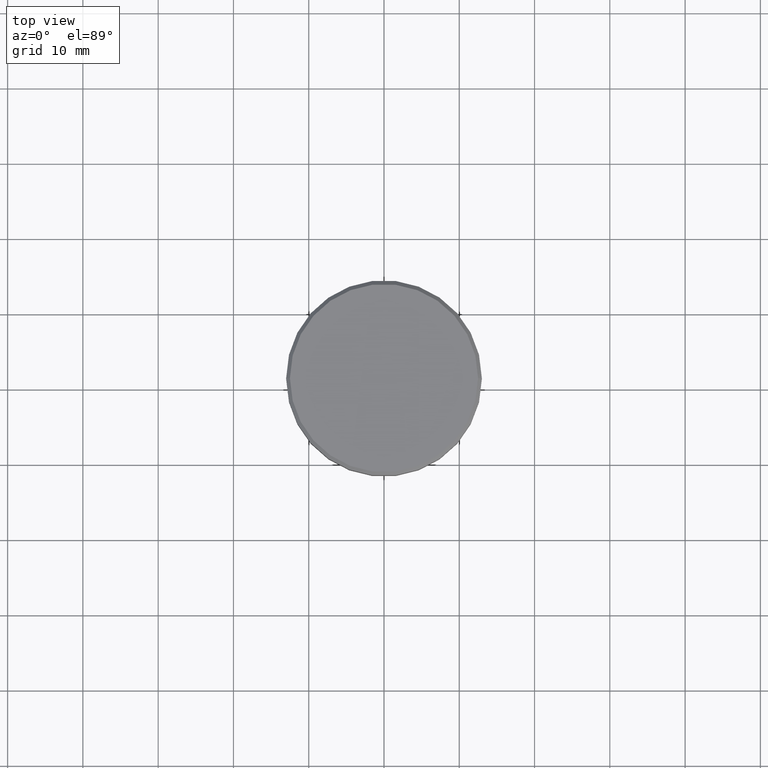
[diagram: clean part render]
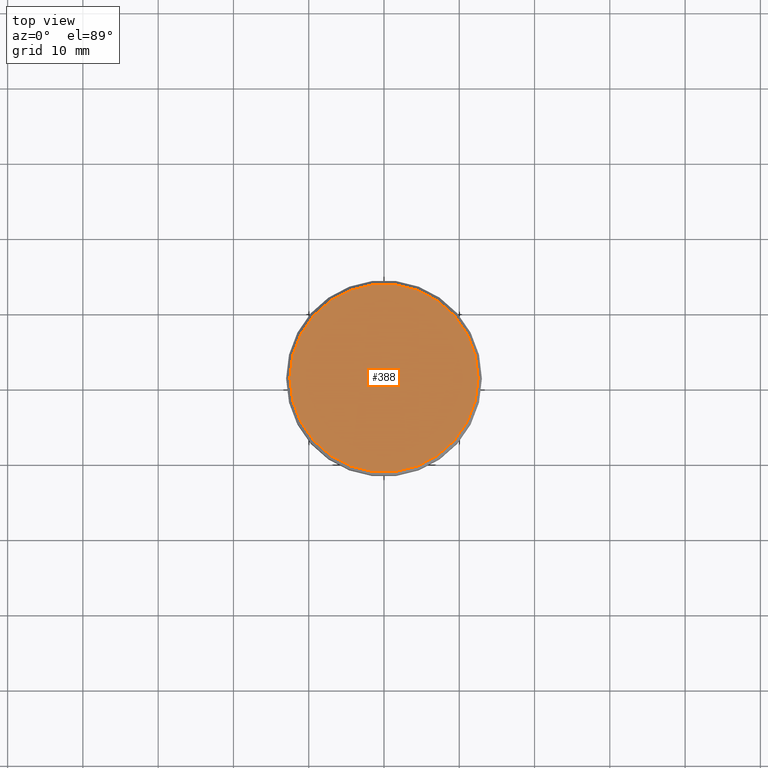
[diagram: same view with one face highlighted and labeled with its STEP entity id]
A machine part, top view. The second image highlights one B-rep face of the part: STEP entity #388.
In plain terms, the highlighted planar face has unit normal (0, -0, 1).
Its self-contained STEP definition (entity closure, byte-faithful):
#205 = AXIS2_PLACEMENT_3D ( 'NONE', #996, #957, #285 ) ;
#266 = ORIENTED_EDGE ( 'NONE', *, *, #365, .T. ) ;
#272 = PLANE ( 'NONE',  #382 ) ;
#285 = DIRECTION ( 'NONE',  ( 1.000000000000000000, 0.000000000000000000, 0.000000000000000000 ) ) ;
#315 = CIRCLE ( 'NONE', #205, 12.49999999999999645 ) ;
#336 = DIRECTION ( 'NONE',  ( 1.000000000000000000, 0.000000000000000000, 0.000000000000000000 ) ) ;
#365 = EDGE_CURVE ( 'NONE', #1020, #734, #315, .T. ) ;
#382 = AXIS2_PLACEMENT_3D ( 'NONE', #535, #450, #702 ) ;
#388 = ADVANCED_FACE ( 'NONE', ( #600 ), #272, .T. ) ;
#433 = CIRCLE ( 'NONE', #915, 12.49999999999999645 ) ;
#450 = DIRECTION ( 'NONE',  ( 0.000000000000000000, -0.000000000000000000, 1.000000000000000000 ) ) ;
#535 = CARTESIAN_POINT ( 'NONE',  ( 0.000000000000000000, 0.000000000000000000, 0.000000000000000000 ) ) ;
#538 = ORIENTED_EDGE ( 'NONE', *, *, #671, .T. ) ;
#548 = CARTESIAN_POINT ( 'NONE',  ( 12.49999999999999645, 1.561424668912875111E-15, 0.000000000000000000 ) ) ;
#600 = FACE_OUTER_BOUND ( 'NONE', #838, .T. ) ;
#671 = EDGE_CURVE ( 'NONE', #734, #1020, #433, .T. ) ;
#702 = DIRECTION ( 'NONE',  ( 1.000000000000000000, 0.000000000000000000, 0.000000000000000000 ) ) ;
#729 = CARTESIAN_POINT ( 'NONE',  ( 0.000000000000000000, 0.000000000000000000, 0.000000000000000000 ) ) ;
#734 = VERTEX_POINT ( 'NONE', #902 ) ;
#836 = DIRECTION ( 'NONE',  ( -0.000000000000000000, -0.000000000000000000, 1.000000000000000000 ) ) ;
#838 = EDGE_LOOP ( 'NONE', ( #538, #266 ) ) ;
#902 = CARTESIAN_POINT ( 'NONE',  ( -12.49999999999999645, 0.000000000000000000, 0.000000000000000000 ) ) ;
#915 = AXIS2_PLACEMENT_3D ( 'NONE', #729, #836, #336 ) ;
#957 = DIRECTION ( 'NONE',  ( -0.000000000000000000, -0.000000000000000000, 1.000000000000000000 ) ) ;
#996 = CARTESIAN_POINT ( 'NONE',  ( 0.000000000000000000, 0.000000000000000000, 0.000000000000000000 ) ) ;
#1020 = VERTEX_POINT ( 'NONE', #548 ) ;